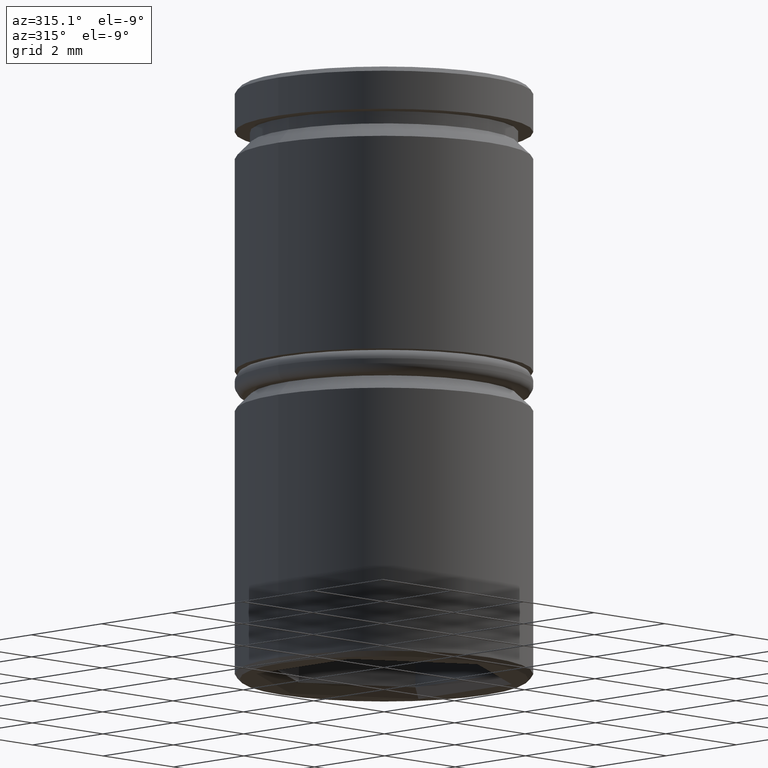
[diagram: clean part render]
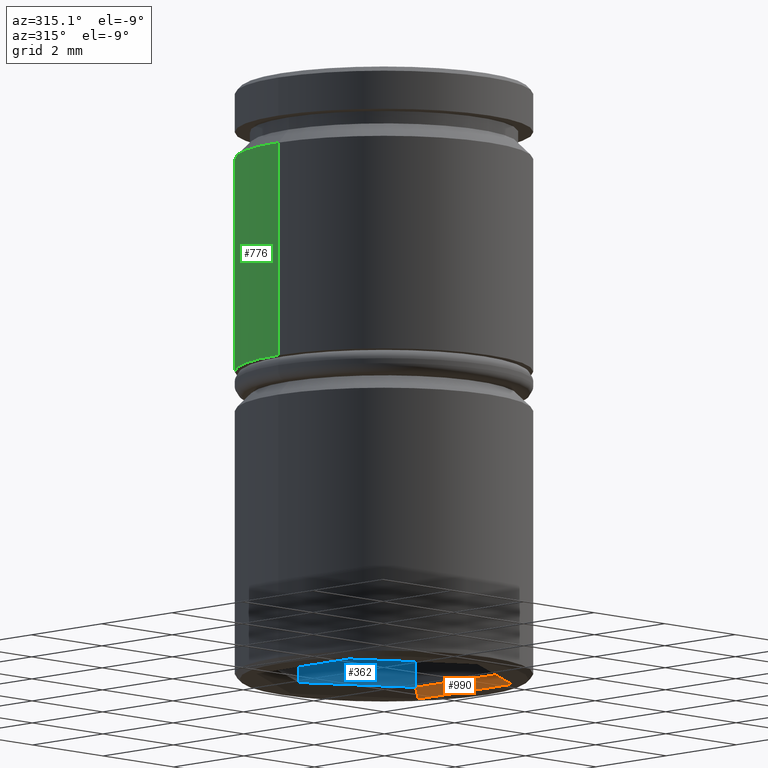
[diagram: same view with three faces highlighted in distinct colors, each labeled with its STEP entity id]
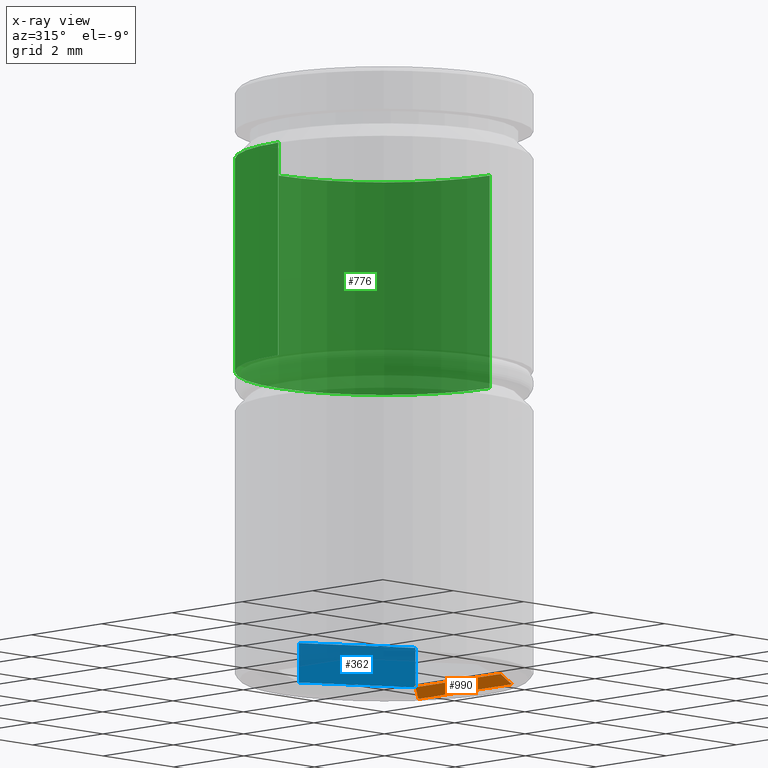
[diagram: x-ray of the same camera — body ghosted, the three highlighted faces saturated]
A machine part, auxiliary view with three faces highlighted in distinct colors.
The next image is the same camera in x-ray (body ghosted, the three faces saturated) — at least one of them is partly hidden behind the body in this view.
Their STEP definitions:

[orange] entity #990 — the highlighted planar face has unit normal (-0.7071, 0, -0.7071).
#23 = DIRECTION ( 'NONE',  ( 0.6546536707079769757, 0.3779644730092274751, -0.6546536707079769757 ) ) ;
#37 = PLANE ( 'NONE',  #162 ) ;
#69 = VECTOR ( 'NONE', #720, 1000.000000000000000 ) ;
#134 = VERTEX_POINT ( 'NONE', #355 ) ;
#135 = DIRECTION ( 'NONE',  ( -0.000000000000000000, 1.000000000000000000, 0.000000000000000000 ) ) ;
#139 = EDGE_CURVE ( 'NONE', #134, #604, #709, .T. ) ;
#162 = AXIS2_PLACEMENT_3D ( 'NONE', #585, #387, #947 ) ;
#167 = ORIENTED_EDGE ( 'NONE', *, *, #789, .T. ) ;
#191 = EDGE_CURVE ( 'NONE', #604, #595, #668, .T. ) ;
#297 = CARTESIAN_POINT ( 'NONE',  ( 2.299999999999997158, 1.327905619136136917, -12.00000000000000000 ) ) ;
#319 = EDGE_LOOP ( 'NONE', ( #167, #1070, #1153, #1051 ) ) ;
#355 = CARTESIAN_POINT ( 'NONE',  ( 2.099999999999996980, -1.212435565298212392, -11.79999999999999893 ) ) ;
#371 = DIRECTION ( 'NONE',  ( 0.000000000000000000, -1.000000000000000000, 0.000000000000000000 ) ) ;
#387 = DIRECTION ( 'NONE',  ( -0.7071067811865475727, 0.000000000000000000, -0.7071067811865475727 ) ) ;
#390 = CARTESIAN_POINT ( 'NONE',  ( 2.299999999999997158, -1.327905619136138915, -12.00000000000000000 ) ) ;
#409 = VERTEX_POINT ( 'NONE', #992 ) ;
#585 = CARTESIAN_POINT ( 'NONE',  ( 2.099999999999996980, 1.212435565298211504, -11.79999999999999893 ) ) ;
#595 = VERTEX_POINT ( 'NONE', #297 ) ;
#604 = VERTEX_POINT ( 'NONE', #390 ) ;
#639 = CARTESIAN_POINT ( 'NONE',  ( 2.099999999999996980, -1.212435565298212392, -11.79999999999999893 ) ) ;
#668 = LINE ( 'NONE', #868, #1037 ) ;
#709 = LINE ( 'NONE', #1073, #69 ) ;
#720 = DIRECTION ( 'NONE',  ( 0.6546536707079761985, -0.3779644730092306393, -0.6546536707079761985 ) ) ;
#727 = LINE ( 'NONE', #639, #815 ) ;
#789 = EDGE_CURVE ( 'NONE', #409, #595, #1011, .T. ) ;
#815 = VECTOR ( 'NONE', #371, 1000.000000000000000 ) ;
#868 = CARTESIAN_POINT ( 'NONE',  ( 2.299999999999997158, 1.212435565298211504, -12.00000000000000000 ) ) ;
#900 = EDGE_CURVE ( 'NONE', #409, #134, #727, .T. ) ;
#947 = DIRECTION ( 'NONE',  ( 0.000000000000000000, 1.000000000000000000, 0.000000000000000000 ) ) ;
#990 = ADVANCED_FACE ( 'NONE', ( #1052 ), #37, .T. ) ;
#992 = CARTESIAN_POINT ( 'NONE',  ( 2.099999999999996980, 1.212435565298211504, -11.79999999999999893 ) ) ;
#1004 = CARTESIAN_POINT ( 'NONE',  ( 1.499999999999997780, 0.8660254037844364872, -11.20000000000000107 ) ) ;
#1011 = LINE ( 'NONE', #1004, #1099 ) ;
#1037 = VECTOR ( 'NONE', #135, 1000.000000000000000 ) ;
#1051 = ORIENTED_EDGE ( 'NONE', *, *, #900, .F. ) ;
#1052 = FACE_OUTER_BOUND ( 'NONE', #319, .T. ) ;
#1070 = ORIENTED_EDGE ( 'NONE', *, *, #191, .F. ) ;
#1073 = CARTESIAN_POINT ( 'NONE',  ( 2.099999999999996980, -1.212435565298212392, -11.79999999999999893 ) ) ;
#1099 = VECTOR ( 'NONE', #23, 1000.000000000000114 ) ;
#1153 = ORIENTED_EDGE ( 'NONE', *, *, #139, .F. ) ;

[blue] entity #362 — the highlighted planar face has unit normal (0.5, 0.866, -0).
#75 = CARTESIAN_POINT ( 'NONE',  ( 2.099999999999996980, 1.212435565298211726, -11.79999999999999893 ) ) ;
#97 = CARTESIAN_POINT ( 'NONE',  ( 0.000000000000000000, 2.424871130596423896, -11.00000000000000000 ) ) ;
#164 = VECTOR ( 'NONE', #891, 1000.000000000000114 ) ;
#174 = CARTESIAN_POINT ( 'NONE',  ( 0.000000000000000000, 2.424871130596423896, -11.00000000000000000 ) ) ;
#217 = VERTEX_POINT ( 'NONE', #882 ) ;
#281 = LINE ( 'NONE', #97, #1154 ) ;
#306 = AXIS2_PLACEMENT_3D ( 'NONE', #174, #1165, #710 ) ;
#309 = ORIENTED_EDGE ( 'NONE', *, *, #437, .F. ) ;
#315 = EDGE_CURVE ( 'NONE', #1168, #409, #338, .T. ) ;
#338 = LINE ( 'NONE', #75, #164 ) ;
#362 = ADVANCED_FACE ( 'NONE', ( #910 ), #902, .F. ) ;
#389 = CARTESIAN_POINT ( 'NONE',  ( 0.000000000000000000, 2.424871130596423896, -11.79999999999999893 ) ) ;
#409 = VERTEX_POINT ( 'NONE', #992 ) ;
#426 = EDGE_LOOP ( 'NONE', ( #524, #861, #309, #885 ) ) ;
#437 = EDGE_CURVE ( 'NONE', #217, #409, #523, .T. ) ;
#449 = VECTOR ( 'NONE', #814, 1000.000000000000000 ) ;
#523 = LINE ( 'NONE', #1000, #449 ) ;
#524 = ORIENTED_EDGE ( 'NONE', *, *, #860, .T. ) ;
#528 = EDGE_CURVE ( 'NONE', #707, #217, #281, .T. ) ;
#644 = DIRECTION ( 'NONE',  ( 0.8660254037844385966, -0.4999999999999999445, 0.000000000000000000 ) ) ;
#653 = VECTOR ( 'NONE', #1013, 1000.000000000000000 ) ;
#707 = VERTEX_POINT ( 'NONE', #898 ) ;
#710 = DIRECTION ( 'NONE',  ( -0.8660254037844385966, 0.4999999999999999445, 0.000000000000000000 ) ) ;
#814 = DIRECTION ( 'NONE',  ( -0.000000000000000000, -0.000000000000000000, -1.000000000000000000 ) ) ;
#820 = LINE ( 'NONE', #1017, #653 ) ;
#860 = EDGE_CURVE ( 'NONE', #707, #1168, #820, .T. ) ;
#861 = ORIENTED_EDGE ( 'NONE', *, *, #315, .T. ) ;
#882 = CARTESIAN_POINT ( 'NONE',  ( 2.099999999999996980, 1.212435565298211504, -11.00000000000000000 ) ) ;
#885 = ORIENTED_EDGE ( 'NONE', *, *, #528, .F. ) ;
#891 = DIRECTION ( 'NONE',  ( 0.8660254037844385966, -0.4999999999999999445, 0.000000000000000000 ) ) ;
#898 = CARTESIAN_POINT ( 'NONE',  ( 0.000000000000000000, 2.424871130596423896, -11.00000000000000000 ) ) ;
#902 = PLANE ( 'NONE',  #306 ) ;
#910 = FACE_OUTER_BOUND ( 'NONE', #426, .T. ) ;
#992 = CARTESIAN_POINT ( 'NONE',  ( 2.099999999999996980, 1.212435565298211504, -11.79999999999999893 ) ) ;
#1000 = CARTESIAN_POINT ( 'NONE',  ( 2.099999999999996980, 1.212435565298211504, -11.00000000000000000 ) ) ;
#1013 = DIRECTION ( 'NONE',  ( -0.000000000000000000, -0.000000000000000000, -1.000000000000000000 ) ) ;
#1017 = CARTESIAN_POINT ( 'NONE',  ( 0.000000000000000000, 2.424871130596423896, -11.00000000000000000 ) ) ;
#1154 = VECTOR ( 'NONE', #644, 1000.000000000000114 ) ;
#1165 = DIRECTION ( 'NONE',  ( 0.5000000000000000000, 0.8660254037844387076, -0.000000000000000000 ) ) ;
#1168 = VERTEX_POINT ( 'NONE', #389 ) ;

[green] entity #776 — the highlighted cylindrical surface (partial cylindrical patch) has radius 3 mm, axis along (-0, -0, 1).
#7 = DIRECTION ( 'NONE',  ( 0.000000000000000000, 0.000000000000000000, -1.000000000000000000 ) ) ;
#30 = AXIS2_PLACEMENT_3D ( 'NONE', #719, #63, #336 ) ;
#53 = ORIENTED_EDGE ( 'NONE', *, *, #906, .T. ) ;
#63 = DIRECTION ( 'NONE',  ( -0.000000000000000000, -0.000000000000000000, 1.000000000000000000 ) ) ;
#70 = VERTEX_POINT ( 'NONE', #434 ) ;
#93 = DIRECTION ( 'NONE',  ( -0.000000000000000000, -0.000000000000000000, 1.000000000000000000 ) ) ;
#114 = CARTESIAN_POINT ( 'NONE',  ( 3.000000000000000000, 0.000000000000000000, 0.000000000000000000 ) ) ;
#115 = EDGE_CURVE ( 'NONE', #335, #70, #214, .T. ) ;
#136 = CARTESIAN_POINT ( 'NONE',  ( -3.000000000000000000, 3.673940397442059868E-16, -1.424999999999995381 ) ) ;
#161 = DIRECTION ( 'NONE',  ( -0.000000000000000000, -0.000000000000000000, 1.000000000000000000 ) ) ;
#214 = CIRCLE ( 'NONE', #257, 3.000000000000000000 ) ;
#257 = AXIS2_PLACEMENT_3D ( 'NONE', #913, #93, #1163 ) ;
#335 = VERTEX_POINT ( 'NONE', #536 ) ;
#336 = DIRECTION ( 'NONE',  ( 1.000000000000000000, 0.000000000000000000, 0.000000000000000000 ) ) ;
#354 = FACE_OUTER_BOUND ( 'NONE', #838, .T. ) ;
#370 = LINE ( 'NONE', #114, #378 ) ;
#378 = VECTOR ( 'NONE', #734, 1000.000000000000000 ) ;
#434 = CARTESIAN_POINT ( 'NONE',  ( -3.000000000000000000, 3.673940397442059868E-16, -5.750000000000000000 ) ) ;
#442 = EDGE_CURVE ( 'NONE', #335, #711, #370, .T. ) ;
#536 = CARTESIAN_POINT ( 'NONE',  ( 3.000000000000000000, 0.000000000000000000, -5.750000000000000000 ) ) ;
#600 = AXIS2_PLACEMENT_3D ( 'NONE', #823, #7, #925 ) ;
#630 = LINE ( 'NONE', #1174, #1177 ) ;
#674 = CIRCLE ( 'NONE', #600, 3.000000000000000000 ) ;
#690 = ORIENTED_EDGE ( 'NONE', *, *, #115, .T. ) ;
#711 = VERTEX_POINT ( 'NONE', #722 ) ;
#719 = CARTESIAN_POINT ( 'NONE',  ( 0.000000000000000000, 0.000000000000000000, 0.000000000000000000 ) ) ;
#722 = CARTESIAN_POINT ( 'NONE',  ( 3.000000000000000000, 0.000000000000000000, -1.424999999999995381 ) ) ;
#734 = DIRECTION ( 'NONE',  ( -0.000000000000000000, -0.000000000000000000, 1.000000000000000000 ) ) ;
#742 = EDGE_CURVE ( 'NONE', #70, #1054, #630, .T. ) ;
#776 = ADVANCED_FACE ( 'NONE', ( #354 ), #887, .T. ) ;
#823 = CARTESIAN_POINT ( 'NONE',  ( 0.000000000000000000, 0.000000000000000000, -1.424999999999995381 ) ) ;
#838 = EDGE_LOOP ( 'NONE', ( #690, #1080, #53, #1071 ) ) ;
#887 = CYLINDRICAL_SURFACE ( 'NONE', #30, 3.000000000000000000 ) ;
#906 = EDGE_CURVE ( 'NONE', #1054, #711, #674, .T. ) ;
#913 = CARTESIAN_POINT ( 'NONE',  ( 0.000000000000000000, 0.000000000000000000, -5.750000000000000000 ) ) ;
#925 = DIRECTION ( 'NONE',  ( 1.000000000000000000, 0.000000000000000000, 0.000000000000000000 ) ) ;
#1054 = VERTEX_POINT ( 'NONE', #136 ) ;
#1071 = ORIENTED_EDGE ( 'NONE', *, *, #442, .F. ) ;
#1080 = ORIENTED_EDGE ( 'NONE', *, *, #742, .T. ) ;
#1163 = DIRECTION ( 'NONE',  ( 1.000000000000000000, 0.000000000000000000, 0.000000000000000000 ) ) ;
#1174 = CARTESIAN_POINT ( 'NONE',  ( -3.000000000000000000, 3.673940397442059868E-16, 0.000000000000000000 ) ) ;
#1177 = VECTOR ( 'NONE', #161, 1000.000000000000000 ) ;